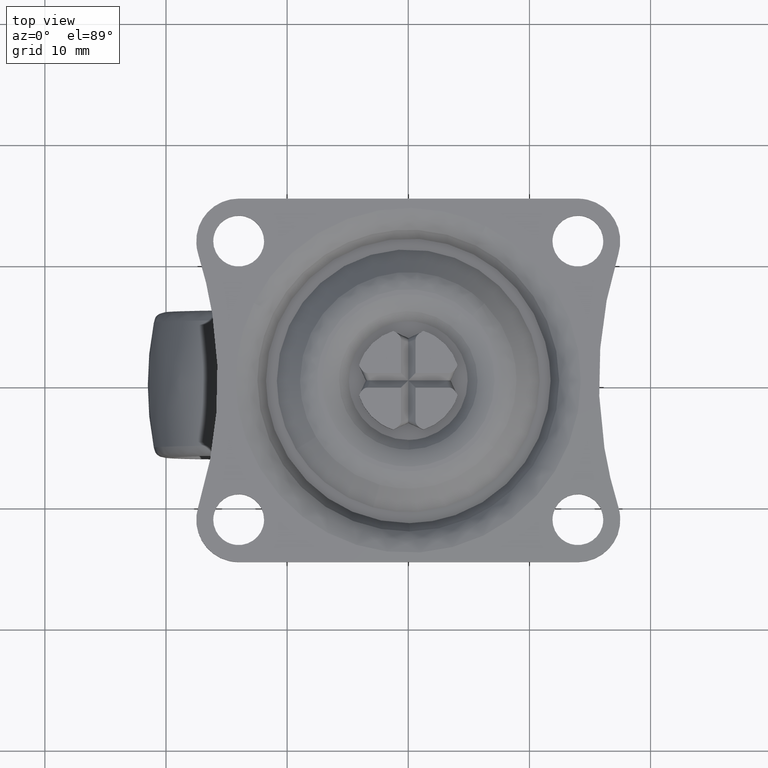
[diagram: clean part render]
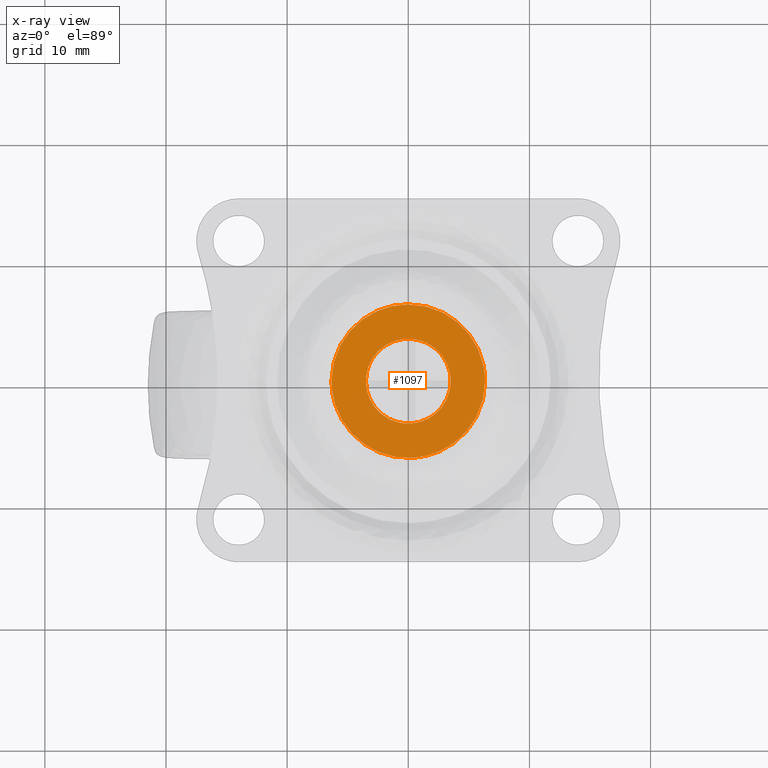
[diagram: x-ray — body ghosted, one internal face saturated and labeled with its STEP entity id]
A machine part, top view, then the same camera in x-ray: the body is ghosted and one INTERNAL B-rep face — a face not visible from any outside direction — is saturated and labeled: STEP entity #1097.
In plain terms, the highlighted face is a freeform B-spline surface patch.
Its self-contained STEP definition (entity closure, byte-faithful):
#85=CARTESIAN_POINT('',(-0.413119821342078,-3.475533342267671,-4.499998000000000));
#86=VERTEX_POINT('',#85);
#92=CARTESIAN_POINT('',(3.500000000000004,0.0,-4.499998000000000));
#93=VERTEX_POINT('',#92);
#94=CARTESIAN_POINT('',(-0.413119821342078,-3.475533342267671,-4.499998000000000));
#95=CARTESIAN_POINT('',(-0.207284418825568,-3.500000000000000,-4.499998000000001));
#96=CARTESIAN_POINT('',(3.552714E-015,-3.500000000000000,-4.499998000000000));
#97=CARTESIAN_POINT('',(3.500000000000003,-3.500000000000000,-4.499998000000000));
#98=CARTESIAN_POINT('',(3.500000000000004,0.0,-4.499998000000000));
#106=(BOUNDED_CURVE()B_SPLINE_CURVE(2,(#94,#95,#96,#97,#98),.UNSPECIFIED.,.F.,.U.)B_SPLINE_CURVE_WITH_KNOTS((3,2,3),(0.229562473511421,0.250000000000000,0.500000000000000),.UNSPECIFIED.)CURVE()GEOMETRIC_REPRESENTATION_ITEM()RATIONAL_B_SPLINE_CURVE((0.956026754179608,0.976055948328699,1.0,0.707106781186547,1.0))REPRESENTATION_ITEM(''));
#107=EDGE_CURVE('',#86,#93,#106,.T.);
#109=CARTESIAN_POINT('',(0.213665739377107,3.493472048234987,-4.499998000000000));
#110=VERTEX_POINT('',#109);
#111=CARTESIAN_POINT('',(3.500000000000004,0.0,-4.499998000000000));
#112=CARTESIAN_POINT('',(3.500000000000003,3.292475151757049,-4.499998000000000));
#113=CARTESIAN_POINT('',(0.213665739377107,3.493472048234987,-4.499998000000000));
#121=(BOUNDED_CURVE()B_SPLINE_CURVE(2,(#111,#112,#113),.UNSPECIFIED.,.F.,.U.)B_SPLINE_CURVE_WITH_KNOTS((3,3),(0.500000000000000,0.739333167165867),.UNSPECIFIED.)CURVE()GEOMETRIC_REPRESENTATION_ITEM()RATIONAL_B_SPLINE_CURVE((1.0,0.719603753199885,0.976072480864519))REPRESENTATION_ITEM(''));
#122=EDGE_CURVE('',#93,#110,#121,.T.);
#196=CARTESIAN_POINT('',(-3.499999999999996,0.0,-4.499998000000000));
#197=VERTEX_POINT('',#196);
#198=CARTESIAN_POINT('',(0.213665739377107,3.493472048234987,-4.499998000000000));
#199=CARTESIAN_POINT('',(0.106932591231117,3.500000000000000,-4.499998000000000));
#200=CARTESIAN_POINT('',(3.552714E-015,3.500000000000000,-4.499998000000000));
#201=CARTESIAN_POINT('',(-3.499999999999997,3.500000000000000,-4.499998000000000));
#202=CARTESIAN_POINT('',(-3.499999999999996,0.0,-4.499998000000000));
#210=(BOUNDED_CURVE()B_SPLINE_CURVE(2,(#198,#199,#200,#201,#202),.UNSPECIFIED.,.F.,.U.)B_SPLINE_CURVE_WITH_KNOTS((3,2,3),(0.739333167165867,0.750000000000000,1.0),.UNSPECIFIED.)CURVE()GEOMETRIC_REPRESENTATION_ITEM()RATIONAL_B_SPLINE_CURVE((0.976072480864519,0.987503027986663,1.0,0.707106781186547,1.0))REPRESENTATION_ITEM(''));
#211=EDGE_CURVE('',#110,#197,#210,.T.);
#213=CARTESIAN_POINT('',(-3.499999999999996,0.0,-4.499998000000000));
#214=CARTESIAN_POINT('',(-3.499999999999997,-3.108610840751556,-4.499998000000000));
#215=CARTESIAN_POINT('',(-0.413119821342078,-3.475533342267671,-4.499998000000000));
#223=(BOUNDED_CURVE()B_SPLINE_CURVE(2,(#213,#214,#215),.UNSPECIFIED.,.F.,.U.)B_SPLINE_CURVE_WITH_KNOTS((3,3),(0.0,0.229562473511421),.UNSPECIFIED.)CURVE()GEOMETRIC_REPRESENTATION_ITEM()RATIONAL_B_SPLINE_CURVE((1.0,0.731050832857848,0.956026754179608))REPRESENTATION_ITEM(''));
#224=EDGE_CURVE('',#197,#86,#223,.T.);
#863=CARTESIAN_POINT('',(0.442324476651971,-6.327651508868211,-4.499998000095522));
#864=VERTEX_POINT('',#863);
#865=CARTESIAN_POINT('',(-6.343092665217490,0.0,-4.499998000000000));
#866=VERTEX_POINT('',#865);
#867=CARTESIAN_POINT('',(0.442324476651971,-6.327651508868211,-4.499998000095522));
#868=CARTESIAN_POINT('',(0.221431756911988,-6.343092665217490,-4.499998000000001));
#869=CARTESIAN_POINT('',(0.0,-6.343092665217490,-4.499998000000000));
#870=CARTESIAN_POINT('',(-6.343092665217490,-6.343092665217490,-4.499998000000000));
#871=CARTESIAN_POINT('',(-6.343092665217490,0.0,-4.499998000000000));
#879=(BOUNDED_CURVE()B_SPLINE_CURVE(2,(#867,#868,#869,#870,#871),.UNSPECIFIED.,.F.,.U.)B_SPLINE_CURVE_WITH_KNOTS((3,2,3),(0.737833686532000,0.750000000000000,1.0),.UNSPECIFIED.)CURVE()GEOMETRIC_REPRESENTATION_ITEM()RATIONAL_B_SPLINE_CURVE((0.972879876380436,0.985746277149056,1.0,0.707106781186547,1.0))REPRESENTATION_ITEM(''));
#880=EDGE_CURVE('',#864,#866,#879,.T.);
#882=CARTESIAN_POINT('',(-0.079707555485368,6.342591841350579,-4.499998000100443));
#883=VERTEX_POINT('',#882);
#884=CARTESIAN_POINT('',(-6.343092665217490,0.0,-4.499998000000000));
#885=CARTESIAN_POINT('',(-6.343092665217490,6.263879679272330,-4.499997999999999));
#886=CARTESIAN_POINT('',(-0.079707555485368,6.342591841350579,-4.499998000100444));
#894=(BOUNDED_CURVE()B_SPLINE_CURVE(2,(#884,#885,#886),.UNSPECIFIED.,.F.,.U.)B_SPLINE_CURVE_WITH_KNOTS((3,3),(0.0,0.247784295917867),.UNSPECIFIED.)CURVE()GEOMETRIC_REPRESENTATION_ITEM()RATIONAL_B_SPLINE_CURVE((1.0,0.709702639988763,0.994854295635126))REPRESENTATION_ITEM(''));
#895=EDGE_CURVE('',#866,#883,#894,.T.);
#997=CARTESIAN_POINT('',(6.343092665217490,0.0,-4.499998000000000));
#998=VERTEX_POINT('',#997);
#999=CARTESIAN_POINT('',(6.343092665217490,0.0,-4.499998000000000));
#1000=CARTESIAN_POINT('',(6.343092665217490,-5.915167635833891,-4.499998000000000));
#1001=CARTESIAN_POINT('',(0.442324476651971,-6.327651508868211,-4.499998000095522));
#1009=(BOUNDED_CURVE()B_SPLINE_CURVE(2,(#999,#1000,#1001),.UNSPECIFIED.,.F.,.U.)B_SPLINE_CURVE_WITH_KNOTS((3,3),(0.500000000000000,0.737833686532001),.UNSPECIFIED.)CURVE()GEOMETRIC_REPRESENTATION_ITEM()RATIONAL_B_SPLINE_CURVE((1.0,0.721360504037491,0.972879876380438))REPRESENTATION_ITEM(''));
#1010=EDGE_CURVE('',#998,#864,#1009,.T.);
#1044=CARTESIAN_POINT('',(-0.079707555485368,6.342591841350579,-4.499998000100443));
#1045=CARTESIAN_POINT('',(-0.039855351182578,6.343092665217490,-4.499998000000000));
#1046=CARTESIAN_POINT('',(0.0,6.343092665217490,-4.499998000000000));
#1047=CARTESIAN_POINT('',(6.343092665217490,6.343092665217490,-4.499998000000000));
#1048=CARTESIAN_POINT('',(6.343092665217490,0.0,-4.499998000000000));
#1056=(BOUNDED_CURVE()B_SPLINE_CURVE(2,(#1044,#1045,#1046,#1047,#1048),.UNSPECIFIED.,.F.,.U.)B_SPLINE_CURVE_WITH_KNOTS((3,2,3),(0.247784295917867,0.250000000000000,0.500000000000000),.UNSPECIFIED.)CURVE()GEOMETRIC_REPRESENTATION_ITEM()RATIONAL_B_SPLINE_CURVE((0.994854295635126,0.997404141197784,1.0,0.707106781186547,1.0))REPRESENTATION_ITEM(''));
#1057=EDGE_CURVE('',#883,#998,#1056,.T.);
#1080=CARTESIAN_POINT('',(-6.976767314382800,-6.975982883036263,-4.499998000000000));
#1081=CARTESIAN_POINT('',(6.976766974112795,-6.975982883036263,-4.499998000000000));
#1082=CARTESIAN_POINT('',(-6.976767314382800,6.976205956437718,-4.499998000000000));
#1083=CARTESIAN_POINT('',(6.976766974112795,6.976205956437718,-4.499998000000000));
#1084=B_SPLINE_SURFACE_WITH_KNOTS('',1,1,((#1080,#1082),(#1081,#1083)),.UNSPECIFIED.,.F.,.F.,.U.,(2,2),(2,2),(0.0,13.953534288495600),(0.0,13.952188839473980),.UNSPECIFIED.);
#1085=ORIENTED_EDGE('',*,*,#880,.F.);
#1086=ORIENTED_EDGE('',*,*,#1010,.F.);
#1087=ORIENTED_EDGE('',*,*,#1057,.F.);
#1088=ORIENTED_EDGE('',*,*,#895,.F.);
#1089=EDGE_LOOP('',(#1085,#1086,#1087,#1088));
#1090=FACE_OUTER_BOUND('',#1089,.T.);
#1091=ORIENTED_EDGE('',*,*,#122,.F.);
#1092=ORIENTED_EDGE('',*,*,#107,.F.);
#1093=ORIENTED_EDGE('',*,*,#224,.F.);
#1094=ORIENTED_EDGE('',*,*,#211,.F.);
#1095=EDGE_LOOP('',(#1091,#1092,#1093,#1094));
#1096=FACE_BOUND('',#1095,.T.);
#1097=ADVANCED_FACE('',(#1090,#1096),#1084,.T.);